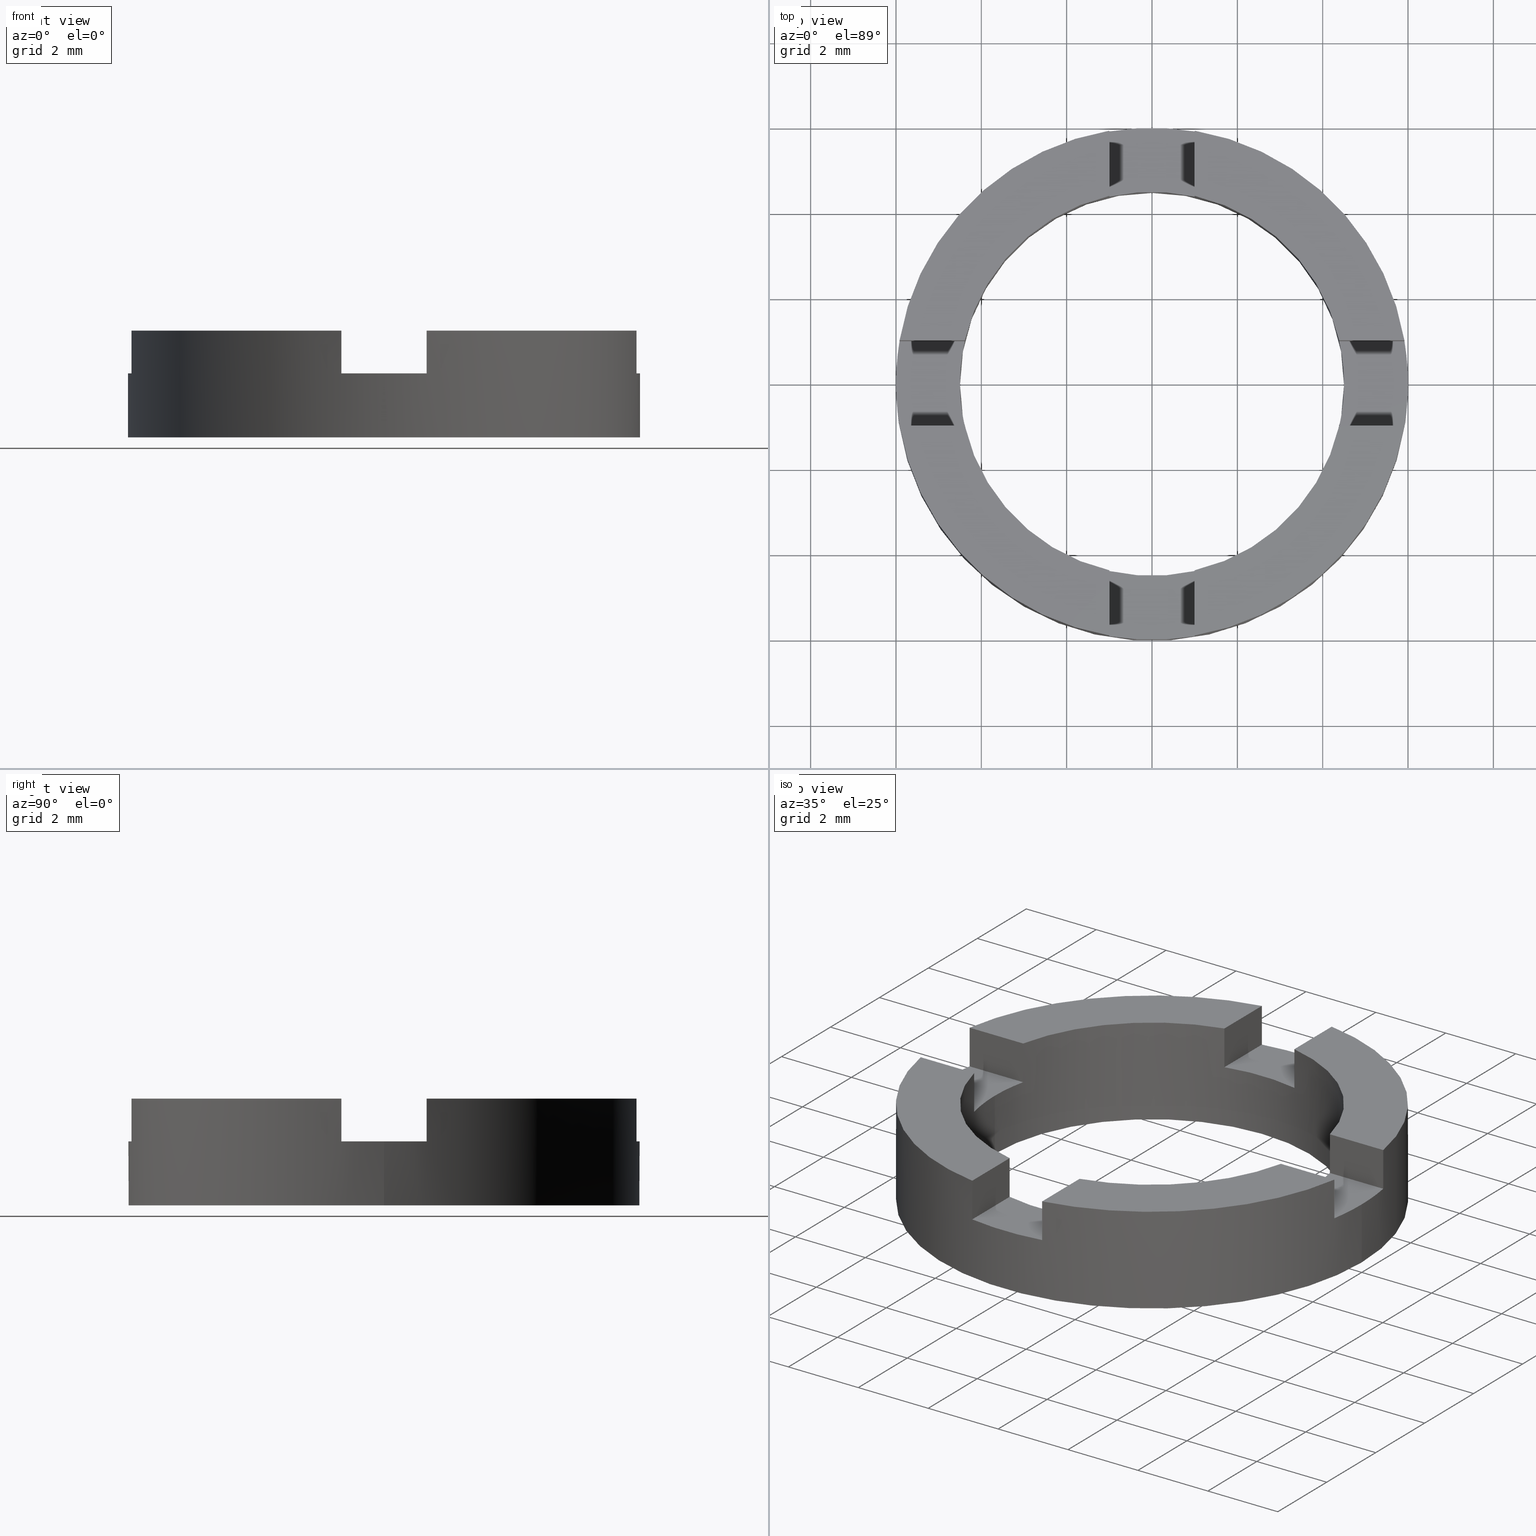
[diagram: canonical four-view strip — front | top / right | iso, engineering-drawing reading convention]
A machine part, canonical four-view strip (front | top / right | iso — engineering-drawing reading convention). The complete STEP part file that produces these views, byte-faithful:
ISO-10303-21;
HEADER;
FILE_DESCRIPTION (( 'STEP AP203' ),
    '1' );
FILE_NAME ('514029.step',
    '2024-12-26T02:30:45',
    ( 'MSI' ),
    ( '' ),
    'SwSTEP 2.0',
    'SolidWorks 2020',
    '' );
FILE_SCHEMA (( 'CONFIG_CONTROL_DESIGN' ));
ENDSEC;

DATA;
#1 = CARTESIAN_POINT ( 'NONE',  ( -4.387482193696063071, -0.9999999999999847899, 1.500000000000000000 ) ) ;
#2 = ADVANCED_FACE ( 'NONE', ( #608 ), #525, .F. ) ;
#3 = CARTESIAN_POINT ( 'NONE',  ( -0.9999999999999986677, 5.916079783099617906, 1.500000000000000000 ) ) ;
#4 = CARTESIAN_POINT ( 'NONE',  ( -0.9999999999999986677, -5.916079783099617906, 2.500000000000000000 ) ) ;
#5 = CARTESIAN_POINT ( 'NONE',  ( -4.387482193696063959, -0.9999999999999850120, 1.500000000000000000 ) ) ;
#6 = DIRECTION ( 'NONE',  ( 1.000000000000000000, 0.000000000000000000, 0.000000000000000000 ) ) ;
#7 = EDGE_CURVE ( 'NONE', #97, #337, #343, .T. ) ;
#8 = CARTESIAN_POINT ( 'NONE',  ( -4.500000000000000000, 0.000000000000000000, 0.000000000000000000 ) ) ;
#9 = EDGE_CURVE ( 'NONE', #337, #473, #599, .T. ) ;
#10 = CARTESIAN_POINT ( 'NONE',  ( -0.9999999999999986677, -4.387482193696060406, 1.500000000000000000 ) ) ;
#11 = DIRECTION ( 'NONE',  ( 1.000000000000000000, -3.722427458866898820E-15, 0.000000000000000000 ) ) ;
#12 = AXIS2_PLACEMENT_3D ( 'NONE', #81, #75, #270 ) ;
#13 = EDGE_CURVE ( 'NONE', #97, #662, #346, .T. ) ;
#14 = PLANE ( 'NONE',  #386 ) ;
#15 = CARTESIAN_POINT ( 'NONE',  ( 1.000000000000001332, 5.916079783099617018, 1.500000000000000000 ) ) ;
#16 = DIRECTION ( 'NONE',  ( -0.000000000000000000, -0.000000000000000000, 1.000000000000000000 ) ) ;
#17 = COORDINATED_UNIVERSAL_TIME_OFFSET ( 8, 0, .AHEAD. ) ;
#18 = EDGE_CURVE ( 'NONE', #434, #214, #60, .T. ) ;
#19 = CARTESIAN_POINT ( 'NONE',  ( -3.722427458866902764E-15, -1.000000000000001110, 1.500000000000000000 ) ) ;
#20 = APPROVAL_PERSON_ORGANIZATION ( #293, #428, #476 ) ;
#21 = DIRECTION ( 'NONE',  ( 1.000000000000000000, 0.000000000000000000, -0.000000000000000000 ) ) ;
#22 = SHAPE_DEFINITION_REPRESENTATION ( #762, #165 ) ;
#23 = DIRECTION ( 'NONE',  ( 1.000000000000000000, -3.758567531283081775E-15, 0.000000000000000000 ) ) ;
#24 = APPROVAL_DATE_TIME ( #290, #227 ) ;
#25 = ADVANCED_FACE ( 'NONE', ( #345 ), #14, .T. ) ;
#26 = APPROVAL_PERSON_ORGANIZATION ( #160, #509, #31 ) ;
#27 = DIRECTION ( 'NONE',  ( 1.000000000000000000, 0.000000000000000000, 0.000000000000000000 ) ) ;
#28 = DIRECTION ( 'NONE',  ( 1.000000000000000000, 0.000000000000000000, 0.000000000000000000 ) ) ;
#29 = EDGE_CURVE ( 'NONE', #720, #588, #606, .T. ) ;
#30 = CALENDAR_DATE ( 2024, 26, 12 ) ;
#31 = APPROVAL_ROLE ( '' ) ;
#32 = LOCAL_TIME ( 10, 30, 45.00000000000000000, #44 ) ;
#33 = CARTESIAN_POINT ( 'NONE',  ( 0.000000000000000000, 0.000000000000000000, 2.500000000000000000 ) ) ;
#34 = AXIS2_PLACEMENT_3D ( 'NONE', #117, #172, #537 ) ;
#35 = PLANE ( 'NONE',  #466 ) ;
#36 = EDGE_CURVE ( 'NONE', #92, #221, #607, .T. ) ;
#37 = CARTESIAN_POINT ( 'NONE',  ( -0.9999999999999986677, 4.387482193696060406, 1.500000000000000000 ) ) ;
#38 = DIRECTION ( 'NONE',  ( -0.000000000000000000, -0.000000000000000000, 1.000000000000000000 ) ) ;
#39 = DIRECTION ( 'NONE',  ( -1.000000000000000000, 0.000000000000000000, 0.000000000000000000 ) ) ;
#40 = CALENDAR_DATE ( 2024, 26, 12 ) ;
#41 = ADVANCED_FACE ( 'NONE', ( #605 ), #264, .F. ) ;
#42 = DIRECTION ( 'NONE',  ( -0.000000000000000000, -0.000000000000000000, 1.000000000000000000 ) ) ;
#43 = DATE_AND_TIME ( #285, #551 ) ;
#44 = COORDINATED_UNIVERSAL_TIME_OFFSET ( 8, 0, .AHEAD. ) ;
#45 = AXIS2_PLACEMENT_3D ( 'NONE', #533, #468, #669 ) ;
#46 = ORIENTED_EDGE ( 'NONE', *, *, #275, .T. ) ;
#47 = DIRECTION ( 'NONE',  ( -0.000000000000000000, -0.000000000000000000, -1.000000000000000000 ) ) ;
#48 = AXIS2_PLACEMENT_3D ( 'NONE', #340, #648, #703 ) ;
#49 = ADVANCED_FACE ( 'NONE', ( #328 ), #453, .T. ) ;
#50 = DIRECTION ( 'NONE',  ( 0.000000000000000000, 0.000000000000000000, 1.000000000000000000 ) ) ;
#51 = LINE ( 'NONE', #425, #580 ) ;
#52 = AXIS2_PLACEMENT_3D ( 'NONE', #182, #245, #21 ) ;
#53 = CARTESIAN_POINT ( 'NONE',  ( -3.722427458866902764E-15, -1.000000000000001110, 2.500000000000000000 ) ) ;
#54 = CIRCLE ( 'NONE', #323, 6.000000000000000888 ) ;
#55 = EDGE_CURVE ( 'NONE', #720, #206, #51, .T. ) ;
#56 = CIRCLE ( 'NONE', #530, 6.000000000000000888 ) ;
#57 = VECTOR ( 'NONE', #763, 1000.000000000000000 ) ;
#58 = VECTOR ( 'NONE', #566, 1000.000000000000000 ) ;
#59 = CARTESIAN_POINT ( 'NONE',  ( -4.500000000000000000, 0.000000000000000000, 1.500000000000000000 ) ) ;
#60 = LINE ( 'NONE', #15, #325 ) ;
#61 = UNCERTAINTY_MEASURE_WITH_UNIT (LENGTH_MEASURE( 1.000000000000000082E-05 ), #250, 'distance_accuracy_value', 'NONE');
#62 = VECTOR ( 'NONE', #84, 1000.000000000000000 ) ;
#63 = CIRCLE ( 'NONE', #45, 4.500000000000000000 ) ;
#64 = CC_DESIGN_DATE_AND_TIME_ASSIGNMENT ( #298, #173, ( #113 ) ) ;
#65 = CIRCLE ( 'NONE', #684, 4.500000000000000000 ) ;
#66 = CARTESIAN_POINT ( 'NONE',  ( -3.722427458866902764E-15, -1.000000000000001110, 1.500000000000000000 ) ) ;
#67 = EDGE_CURVE ( 'NONE', #492, #757, #54, .T. ) ;
#68 = CIRCLE ( 'NONE', #445, 6.000000000000000888 ) ;
#69 = CARTESIAN_POINT ( 'NONE',  ( -4.387482193696056854, 1.000000000000015321, 1.500000000000000000 ) ) ;
#70 = ORIENTED_EDGE ( 'NONE', *, *, #749, .T. ) ;
#71 = LINE ( 'NONE', #69, #604 ) ;
#72 = EDGE_LOOP ( 'NONE', ( #635, #735 ) ) ;
#73 = LINE ( 'NONE', #610, #595 ) ;
#74 = DIRECTION ( 'NONE',  ( -0.000000000000000000, 0.000000000000000000, 1.000000000000000000 ) ) ;
#75 = DIRECTION ( 'NONE',  ( -0.000000000000000000, -0.000000000000000000, -1.000000000000000000 ) ) ;
#76 = LINE ( 'NONE', #271, #603 ) ;
#77 = VECTOR ( 'NONE', #449, 1000.000000000000000 ) ;
#78 = VECTOR ( 'NONE', #710, 1000.000000000000000 ) ;
#79 = AXIS2_PLACEMENT_3D ( 'NONE', #516, #709, #23 ) ;
#80 = VECTOR ( 'NONE', #186, 1000.000000000000000 ) ;
#81 = CARTESIAN_POINT ( 'NONE',  ( 0.000000000000000000, 0.000000000000000000, 2.500000000000000000 ) ) ;
#82 = VECTOR ( 'NONE', #272, 1000.000000000000000 ) ;
#83 = PLANE ( 'NONE',  #243 ) ;
#84 = DIRECTION ( 'NONE',  ( 0.000000000000000000, 1.000000000000000000, -0.000000000000000000 ) ) ;
#85 = LINE ( 'NONE', #106, #82 ) ;
#86 = VECTOR ( 'NONE', #312, 1000.000000000000000 ) ;
#87 = VERTEX_POINT ( 'NONE', #722 ) ;
#88 = FACE_OUTER_BOUND ( 'NONE', #727, .T. ) ;
#89 = ORIENTED_EDGE ( 'NONE', *, *, #436, .F. ) ;
#90 = DIRECTION ( 'NONE',  ( 1.000000000000000000, -3.722427458866898820E-15, 0.000000000000000000 ) ) ;
#91 = LINE ( 'NONE', #499, #363 ) ;
#92 = VERTEX_POINT ( 'NONE', #37 ) ;
#93 = CARTESIAN_POINT ( 'NONE',  ( -0.9999999999999986677, 0.000000000000000000, 1.500000000000000000 ) ) ;
#94 = FACE_OUTER_BOUND ( 'NONE', #658, .T. ) ;
#95 = ORIENTED_EDGE ( 'NONE', *, *, #371, .F. ) ;
#96 = FACE_OUTER_BOUND ( 'NONE', #475, .T. ) ;
#97 = VERTEX_POINT ( 'NONE', #342 ) ;
#98 = CIRCLE ( 'NONE', #568, 6.000000000000000888 ) ;
#99 = ORIENTED_EDGE ( 'NONE', *, *, #745, .F. ) ;
#100 = CYLINDRICAL_SURFACE ( 'NONE', #12, 4.500000000000000000 ) ;
#101 = ORIENTED_EDGE ( 'NONE', *, *, #187, .T. ) ;
#102 = CARTESIAN_POINT ( 'NONE',  ( -3.722427458866902764E-15, -1.000000000000001110, 2.500000000000000000 ) ) ;
#103 = ORIENTED_EDGE ( 'NONE', *, *, #371, .T. ) ;
#104 = CIRCLE ( 'NONE', #718, 4.500000000000000000 ) ;
#105 = ORIENTED_EDGE ( 'NONE', *, *, #164, .F. ) ;
#106 = CARTESIAN_POINT ( 'NONE',  ( 1.000000000000001332, 4.387482193696059518, 1.500000000000000000 ) ) ;
#107 = FACE_OUTER_BOUND ( 'NONE', #134, .T. ) ;
#108 = ORIENTED_EDGE ( 'NONE', *, *, #544, .F. ) ;
#109 = VECTOR ( 'NONE', #779, 1000.000000000000000 ) ;
#110 = ORIENTED_EDGE ( 'NONE', *, *, #691, .F. ) ;
#111 = VECTOR ( 'NONE', #441, 1000.000000000000000 ) ;
#112 = ORIENTED_EDGE ( 'NONE', *, *, #179, .F. ) ;
#113 = SECURITY_CLASSIFICATION ( '', '', #459 ) ;
#114 = DIRECTION ( 'NONE',  ( 0.000000000000000000, 0.000000000000000000, -1.000000000000000000 ) ) ;
#115 = LINE ( 'NONE', #767, #133 ) ;
#116 = ORIENTED_EDGE ( 'NONE', *, *, #447, .T. ) ;
#117 = CARTESIAN_POINT ( 'NONE',  ( 0.000000000000000000, 0.000000000000000000, 1.500000000000000000 ) ) ;
#118 = DIRECTION ( 'NONE',  ( -0.000000000000000000, 0.000000000000000000, 1.000000000000000000 ) ) ;
#119 = VECTOR ( 'NONE', #311, 1000.000000000000000 ) ;
#120 = ORIENTED_EDGE ( 'NONE', *, *, #782, .T. ) ;
#121 = FACE_OUTER_BOUND ( 'NONE', #461, .T. ) ;
#122 = EDGE_LOOP ( 'NONE', ( #127, #359, #231, #145, #131, #101 ) ) ;
#123 = FACE_OUTER_BOUND ( 'NONE', #402, .T. ) ;
#124 = ORIENTED_EDGE ( 'NONE', *, *, #260, .F. ) ;
#125 = CARTESIAN_POINT ( 'NONE',  ( 1.000000000000001332, -4.387482193696059518, 2.500000000000000000 ) ) ;
#126 = CIRCLE ( 'NONE', #292, 4.500000000000000000 ) ;
#127 = ORIENTED_EDGE ( 'NONE', *, *, #470, .F. ) ;
#128 = VECTOR ( 'NONE', #474, 1000.000000000000000 ) ;
#129 = ORIENTED_EDGE ( 'NONE', *, *, #267, .F. ) ;
#130 = VECTOR ( 'NONE', #406, 1000.000000000000000 ) ;
#131 = ORIENTED_EDGE ( 'NONE', *, *, #175, .T. ) ;
#132 = AXIS2_PLACEMENT_3D ( 'NONE', #753, #444, #282 ) ;
#133 = VECTOR ( 'NONE', #16, 1000.000000000000000 ) ;
#134 = EDGE_LOOP ( 'NONE', ( #646, #327, #656, #413 ) ) ;
#135 = CARTESIAN_POINT ( 'NONE',  ( 6.000000000000000888, 7.347880794884120722E-16, 1.500000000000000000 ) ) ;
#136 = EDGE_CURVE ( 'NONE', #92, #197, #341, .T. ) ;
#137 = LINE ( 'NONE', #176, #374 ) ;
#138 = ORIENTED_EDGE ( 'NONE', *, *, #247, .T. ) ;
#139 = DIRECTION ( 'NONE',  ( 0.000000000000000000, 0.000000000000000000, 1.000000000000000000 ) ) ;
#140 = LINE ( 'NONE', #249, #401 ) ;
#141 = ORIENTED_EDGE ( 'NONE', *, *, #265, .T. ) ;
#142 = VERTEX_POINT ( 'NONE', #241 ) ;
#143 = PRODUCT ( '514029', '514029', '', ( #686 ) ) ;
#144 = LINE ( 'NONE', #232, #355 ) ;
#145 = ORIENTED_EDGE ( 'NONE', *, *, #253, .T. ) ;
#146 = DIRECTION ( 'NONE',  ( 0.000000000000000000, 0.000000000000000000, 1.000000000000000000 ) ) ;
#147 = ORIENTED_EDGE ( 'NONE', *, *, #503, .F. ) ;
#148 = ORIENTED_EDGE ( 'NONE', *, *, #538, .T. ) ;
#149 = PLANE ( 'NONE',  #256 ) ;
#150 = AXIS2_PLACEMENT_3D ( 'NONE', #191, #724, #188 ) ;
#151 = VECTOR ( 'NONE', #38, 1000.000000000000000 ) ;
#152 = VERTEX_POINT ( 'NONE', #541 ) ;
#153 = AXIS2_PLACEMENT_3D ( 'NONE', #550, #513, #626 ) ;
#154 = VECTOR ( 'NONE', #540, 1000.000000000000000 ) ;
#155 = EDGE_CURVE ( 'NONE', #221, #361, #85, .T. ) ;
#156 = CIRCLE ( 'NONE', #150, 6.000000000000000888 ) ;
#157 = ORGANIZATION ( 'δָ��', 'δָ��', '' ) ;
#158 = CARTESIAN_POINT ( 'NONE',  ( -6.000000000000000888, 0.000000000000000000, 0.000000000000000000 ) ) ;
#159 = DIRECTION ( 'NONE',  ( -3.722427458866898820E-15, -1.000000000000000000, 0.000000000000000000 ) ) ;
#160 = PERSON_AND_ORGANIZATION ( #505, #157 ) ;
#161 = LINE ( 'NONE', #688, #154 ) ;
#162 = CC_DESIGN_PERSON_AND_ORGANIZATION_ASSIGNMENT ( #552, #774, ( #514 ) ) ;
#163 = CARTESIAN_POINT ( 'NONE',  ( 4.500000000000000000, 5.510910596163088569E-16, 1.500000000000000000 ) ) ;
#164 = EDGE_CURVE ( 'NONE', #412, #87, #63, .T. ) ;
#165 = ADVANCED_BREP_SHAPE_REPRESENTATION ( '514029', ( #593, #178 ), #535 ) ;
#166 = DIRECTION ( 'NONE',  ( 1.000000000000000000, 0.000000000000000000, 0.000000000000000000 ) ) ;
#167 = DIRECTION ( 'NONE',  ( 1.000000000000000000, 0.000000000000000000, 0.000000000000000000 ) ) ;
#168 = DIRECTION ( 'NONE',  ( 0.000000000000000000, 0.000000000000000000, -1.000000000000000000 ) ) ;
#169 = CARTESIAN_POINT ( 'NONE',  ( 0.000000000000000000, 0.000000000000000000, 1.500000000000000000 ) ) ;
#170 = DIRECTION ( 'NONE',  ( 1.000000000000000000, 0.000000000000000000, 0.000000000000000000 ) ) ;
#171 = PLANE ( 'NONE',  #184 ) ;
#172 = DIRECTION ( 'NONE',  ( -0.000000000000000000, 0.000000000000000000, 1.000000000000000000 ) ) ;
#173 = DATE_TIME_ROLE ( 'classification_date' ) ;
#174 = AXIS2_PLACEMENT_3D ( 'NONE', #696, #218, #518 ) ;
#175 = EDGE_CURVE ( 'NONE', #726, #743, #602, .T. ) ;
#176 = CARTESIAN_POINT ( 'NONE',  ( 5.916079783099613465, -1.000000000000023315, 1.500000000000000000 ) ) ;
#177 = EDGE_LOOP ( 'NONE', ( #392, #373, #377, #496 ) ) ;
#178 = AXIS2_PLACEMENT_3D ( 'NONE', #286, #357, #431 ) ;
#179 = EDGE_CURVE ( 'NONE', #234, #438, #329, .T. ) ;
#180 = ORIENTED_EDGE ( 'NONE', *, *, #493, .F. ) ;
#181 = DESIGN_CONTEXT ( 'detailed design', #335, 'design' ) ;
#182 = CARTESIAN_POINT ( 'NONE',  ( 0.000000000000000000, 0.000000000000000000, 2.500000000000000000 ) ) ;
#183 = PERSON_AND_ORGANIZATION_ROLE ( 'creator' ) ;
#184 = AXIS2_PLACEMENT_3D ( 'NONE', #185, #777, #324 ) ;
#185 = CARTESIAN_POINT ( 'NONE',  ( 0.000000000000000000, 0.000000000000000000, 0.000000000000000000 ) ) ;
#186 = DIRECTION ( 'NONE',  ( 0.000000000000000000, 1.000000000000000000, -0.000000000000000000 ) ) ;
#187 = EDGE_CURVE ( 'NONE', #743, #723, #56, .T. ) ;
#188 = DIRECTION ( 'NONE',  ( 1.000000000000000000, 0.000000000000000000, 0.000000000000000000 ) ) ;
#189 = DIRECTION ( 'NONE',  ( -0.000000000000000000, -0.000000000000000000, -1.000000000000000000 ) ) ;
#190 = CARTESIAN_POINT ( 'NONE',  ( 0.000000000000000000, 0.000000000000000000, 1.500000000000000000 ) ) ;
#191 = CARTESIAN_POINT ( 'NONE',  ( 0.000000000000000000, 0.000000000000000000, 2.500000000000000000 ) ) ;
#192 = CC_DESIGN_SECURITY_CLASSIFICATION ( #113, ( #514 ) ) ;
#193 = DIRECTION ( 'NONE',  ( 1.000000000000000000, 0.000000000000000000, 0.000000000000000000 ) ) ;
#194 = CARTESIAN_POINT ( 'NONE',  ( 0.000000000000000000, 0.000000000000000000, 1.500000000000000000 ) ) ;
#195 = ORIENTED_EDGE ( 'NONE', *, *, #9, .T. ) ;
#196 = ORIENTED_EDGE ( 'NONE', *, *, #782, .F. ) ;
#197 = VERTEX_POINT ( 'NONE', #3 ) ;
#198 = EDGE_LOOP ( 'NONE', ( #103, #220 ) ) ;
#199 = EDGE_LOOP ( 'NONE', ( #754, #338, #439, #660 ) ) ;
#200 = CARTESIAN_POINT ( 'NONE',  ( 0.000000000000000000, 0.000000000000000000, 2.500000000000000000 ) ) ;
#201 = DIRECTION ( 'NONE',  ( 0.000000000000000000, 0.000000000000000000, -1.000000000000000000 ) ) ;
#202 = ORIENTED_EDGE ( 'NONE', *, *, #304, .F. ) ;
#203 = AXIS2_PLACEMENT_3D ( 'NONE', #422, #268, #564 ) ;
#204 = VERTEX_POINT ( 'NONE', #501 ) ;
#205 = EDGE_CURVE ( 'NONE', #206, #653, #579, .T. ) ;
#206 = VERTEX_POINT ( 'NONE', #252 ) ;
#207 = ORIENTED_EDGE ( 'NONE', *, *, #304, .T. ) ;
#208 = CARTESIAN_POINT ( 'NONE',  ( 1.000000000000001332, 5.916079783099617018, 1.500000000000000000 ) ) ;
#209 = EDGE_LOOP ( 'NONE', ( #741, #738, #364, #138 ) ) ;
#210 = CARTESIAN_POINT ( 'NONE',  ( 1.000000000000001332, 4.387482193696059518, 1.500000000000000000 ) ) ;
#211 = ORIENTED_EDGE ( 'NONE', *, *, #702, .F. ) ;
#212 = EDGE_LOOP ( 'NONE', ( #679, #196, #736, #665 ) ) ;
#213 = AXIS2_PLACEMENT_3D ( 'NONE', #269, #321, #170 ) ;
#214 = VERTEX_POINT ( 'NONE', #366 ) ;
#215 = CARTESIAN_POINT ( 'NONE',  ( 0.000000000000000000, 0.000000000000000000, 2.500000000000000000 ) ) ;
#216 = VERTEX_POINT ( 'NONE', #600 ) ;
#217 = AXIS2_PLACEMENT_3D ( 'NONE', #570, #663, #707 ) ;
#218 = DIRECTION ( 'NONE',  ( -0.000000000000000000, 0.000000000000000000, 1.000000000000000000 ) ) ;
#219 = ORIENTED_EDGE ( 'NONE', *, *, #778, .T. ) ;
#220 = ORIENTED_EDGE ( 'NONE', *, *, #490, .T. ) ;
#221 = VERTEX_POINT ( 'NONE', #210 ) ;
#222 = DIRECTION ( 'NONE',  ( 1.000000000000000000, -3.758567531283081775E-15, 0.000000000000000000 ) ) ;
#223 = ORIENTED_EDGE ( 'NONE', *, *, #503, .T. ) ;
#224 = CARTESIAN_POINT ( 'NONE',  ( 4.500000000000000000, 5.510910596163088569E-16, 2.500000000000000000 ) ) ;
#225 = ORIENTED_EDGE ( 'NONE', *, *, #294, .F. ) ;
#226 = ORIENTED_EDGE ( 'NONE', *, *, #261, .F. ) ;
#227 = APPROVAL ( #575, 'δָ��' ) ;
#228 = ORIENTED_EDGE ( 'NONE', *, *, #758, .T. ) ;
#229 = CARTESIAN_POINT ( 'NONE',  ( -3.722427458866902764E-15, -1.000000000000001110, 1.500000000000000000 ) ) ;
#230 = CARTESIAN_POINT ( 'NONE',  ( -0.9999999999999986677, 0.000000000000000000, 1.500000000000000000 ) ) ;
#231 = ORIENTED_EDGE ( 'NONE', *, *, #164, .T. ) ;
#232 = CARTESIAN_POINT ( 'NONE',  ( 5.916079783099621459, 0.9999999999999765743, 1.500000000000000000 ) ) ;
#233 = CARTESIAN_POINT ( 'NONE',  ( -0.9999999999999986677, 0.000000000000000000, 2.500000000000000000 ) ) ;
#234 = VERTEX_POINT ( 'NONE', #10 ) ;
#235 = DIRECTION ( 'NONE',  ( 0.000000000000000000, 1.000000000000000000, -0.000000000000000000 ) ) ;
#236 = ORIENTED_EDGE ( 'NONE', *, *, #571, .F. ) ;
#237 = ORIENTED_EDGE ( 'NONE', *, *, #13, .F. ) ;
#238 = ORIENTED_EDGE ( 'NONE', *, *, #711, .F. ) ;
#239 = DIRECTION ( 'NONE',  ( 1.000000000000000000, -3.722427458866898820E-15, 0.000000000000000000 ) ) ;
#240 = ORIENTED_EDGE ( 'NONE', *, *, #470, .T. ) ;
#241 = CARTESIAN_POINT ( 'NONE',  ( -4.387482193696063071, -0.9999999999999847899, 2.500000000000000000 ) ) ;
#242 = CC_DESIGN_APPROVAL ( #428, ( #514 ) ) ;
#243 = AXIS2_PLACEMENT_3D ( 'NONE', #93, #522, #114 ) ;
#244 = CARTESIAN_POINT ( 'NONE',  ( 1.000000000000001332, -5.916079783099617018, 1.500000000000000000 ) ) ;
#245 = DIRECTION ( 'NONE',  ( 0.000000000000000000, 0.000000000000000000, 1.000000000000000000 ) ) ;
#246 = APPROVAL_STATUS ( 'not_yet_approved' ) ;
#247 = EDGE_CURVE ( 'NONE', #434, #197, #319, .T. ) ;
#248 = CARTESIAN_POINT ( 'NONE',  ( 1.000000000000001332, 0.000000000000000000, 1.500000000000000000 ) ) ;
#249 = CARTESIAN_POINT ( 'NONE',  ( 6.000000000000000888, 7.347880794884120722E-16, 2.500000000000000000 ) ) ;
#250 =( LENGTH_UNIT ( ) NAMED_UNIT ( * ) SI_UNIT ( .MILLI., .METRE. ) );
#251 = CARTESIAN_POINT ( 'NONE',  ( 0.000000000000000000, 0.000000000000000000, 0.000000000000000000 ) ) ;
#252 = CARTESIAN_POINT ( 'NONE',  ( 1.000000000000001332, -4.387482193696059518, 1.500000000000000000 ) ) ;
#253 = EDGE_CURVE ( 'NONE', #87, #726, #331, .T. ) ;
#254 = DIRECTION ( 'NONE',  ( 1.000000000000000000, 0.000000000000000000, -0.000000000000000000 ) ) ;
#255 = CARTESIAN_POINT ( 'NONE',  ( 0.000000000000000000, 0.000000000000000000, 1.500000000000000000 ) ) ;
#256 = AXIS2_PLACEMENT_3D ( 'NONE', #194, #118, #166 ) ;
#257 = DIRECTION ( 'NONE',  ( 0.000000000000000000, 0.000000000000000000, 1.000000000000000000 ) ) ;
#258 = DIRECTION ( 'NONE',  ( 0.000000000000000000, -0.000000000000000000, -1.000000000000000000 ) ) ;
#259 = CARTESIAN_POINT ( 'NONE',  ( 0.000000000000000000, 0.000000000000000000, 1.500000000000000000 ) ) ;
#260 = EDGE_CURVE ( 'NONE', #653, #481, #582, .T. ) ;
#261 = EDGE_CURVE ( 'NONE', #615, #674, #71, .T. ) ;
#262 = CARTESIAN_POINT ( 'NONE',  ( -0.9999999999999986677, 0.000000000000000000, 2.500000000000000000 ) ) ;
#263 = CC_DESIGN_PERSON_AND_ORGANIZATION_ASSIGNMENT ( #572, #183, ( #542 ) ) ;
#264 = PLANE ( 'NONE',  #217 ) ;
#265 = EDGE_CURVE ( 'NONE', #757, #97, #350, .T. ) ;
#266 = CARTESIAN_POINT ( 'NONE',  ( 0.000000000000000000, 0.000000000000000000, 1.500000000000000000 ) ) ;
#267 = EDGE_CURVE ( 'NONE', #412, #216, #586, .T. ) ;
#268 = DIRECTION ( 'NONE',  ( 0.000000000000000000, -0.000000000000000000, -1.000000000000000000 ) ) ;
#269 = CARTESIAN_POINT ( 'NONE',  ( 0.000000000000000000, 0.000000000000000000, 1.500000000000000000 ) ) ;
#270 = DIRECTION ( 'NONE',  ( -1.000000000000000000, 0.000000000000000000, 0.000000000000000000 ) ) ;
#271 = CARTESIAN_POINT ( 'NONE',  ( 3.758567531283077831E-15, 0.9999999999999988898, 2.500000000000000000 ) ) ;
#272 = DIRECTION ( 'NONE',  ( -0.000000000000000000, -0.000000000000000000, 1.000000000000000000 ) ) ;
#273 = PERSON_AND_ORGANIZATION_ROLE ( 'classification_officer' ) ;
#274 = AXIS2_PLACEMENT_3D ( 'NONE', #419, #455, #561 ) ;
#275 = EDGE_CURVE ( 'NONE', #757, #356, #609, .T. ) ;
#276 = ADVANCED_FACE ( 'NONE', ( #322 ), #699, .T. ) ;
#277 = PLANE ( 'NONE',  #450 ) ;
#278 = PLANE ( 'NONE',  #48 ) ;
#279 = ADVANCED_FACE ( 'NONE', ( #611 ), #332, .T. ) ;
#280 = CARTESIAN_POINT ( 'NONE',  ( 1.000000000000001332, -5.916079783099617018, 2.500000000000000000 ) ) ;
#281 = PERSON_AND_ORGANIZATION_ROLE ( 'creator' ) ;
#282 = DIRECTION ( 'NONE',  ( -1.000000000000000000, 0.000000000000000000, 0.000000000000000000 ) ) ;
#283 = CALENDAR_DATE ( 2024, 26, 12 ) ;
#284 = DIRECTION ( 'NONE',  ( -0.000000000000000000, -0.000000000000000000, -1.000000000000000000 ) ) ;
#285 = CALENDAR_DATE ( 2024, 26, 12 ) ;
#286 = CARTESIAN_POINT ( 'NONE',  ( 0.000000000000000000, 0.000000000000000000, 0.000000000000000000 ) ) ;
#287 = EDGE_CURVE ( 'NONE', #221, #434, #333, .T. ) ;
#288 = CALENDAR_DATE ( 2024, 26, 12 ) ;
#289 = CARTESIAN_POINT ( 'NONE',  ( 5.916079783099621459, 0.9999999999999765743, 1.500000000000000000 ) ) ;
#290 = DATE_AND_TIME ( #283, #291 ) ;
#291 = LOCAL_TIME ( 10, 30, 45.00000000000000000, #567 ) ;
#292 = AXIS2_PLACEMENT_3D ( 'NONE', #685, #397, #446 ) ;
#293 = PERSON_AND_ORGANIZATION ( #505, #157 ) ;
#294 = EDGE_CURVE ( 'NONE', #457, #438, #353, .T. ) ;
#295 = DIRECTION ( 'NONE',  ( 0.000000000000000000, -0.000000000000000000, -1.000000000000000000 ) ) ;
#296 = EDGE_CURVE ( 'NONE', #370, #486, #76, .T. ) ;
#297 = APPROVAL_DATE_TIME ( #559, #428 ) ;
#298 = DATE_AND_TIME ( #30, #300 ) ;
#299 = DIRECTION ( 'NONE',  ( -1.000000000000000000, 0.000000000000000000, 0.000000000000000000 ) ) ;
#300 = LOCAL_TIME ( 10, 30, 45.00000000000000000, #17 ) ;
#301 = DIRECTION ( 'NONE',  ( -0.000000000000000000, -0.000000000000000000, -1.000000000000000000 ) ) ;
#302 = CARTESIAN_POINT ( 'NONE',  ( 5.916079783099613465, -1.000000000000023315, 2.500000000000000000 ) ) ;
#303 = AXIS2_PLACEMENT_3D ( 'NONE', #307, #548, #515 ) ;
#304 = EDGE_CURVE ( 'NONE', #92, #380, #614, .T. ) ;
#305 = PERSON_AND_ORGANIZATION ( #505, #157 ) ;
#306 = APPROVAL_DATE_TIME ( #308, #509 ) ;
#307 = CARTESIAN_POINT ( 'NONE',  ( 0.000000000000000000, 0.000000000000000000, 2.500000000000000000 ) ) ;
#308 = DATE_AND_TIME ( #40, #569 ) ;
#309 = DIRECTION ( 'NONE',  ( -0.000000000000000000, 0.000000000000000000, 1.000000000000000000 ) ) ;
#310 = COORDINATED_UNIVERSAL_TIME_OFFSET ( 8, 0, .AHEAD. ) ;
#311 = DIRECTION ( 'NONE',  ( 0.000000000000000000, 1.000000000000000000, -0.000000000000000000 ) ) ;
#312 = DIRECTION ( 'NONE',  ( -0.000000000000000000, -0.000000000000000000, -1.000000000000000000 ) ) ;
#313 = AXIS2_PLACEMENT_3D ( 'NONE', #230, #315, #168 ) ;
#314 = EDGE_CURVE ( 'NONE', #588, #653, #73, .T. ) ;
#315 = DIRECTION ( 'NONE',  ( 1.000000000000000000, 0.000000000000000000, 0.000000000000000000 ) ) ;
#316 = CYLINDRICAL_SURFACE ( 'NONE', #770, 6.000000000000000888 ) ;
#317 = DIRECTION ( 'NONE',  ( -0.000000000000000000, 0.000000000000000000, 1.000000000000000000 ) ) ;
#318 = EDGE_LOOP ( 'NONE', ( #478, #382, #751, #116 ) ) ;
#319 = CIRCLE ( 'NONE', #519, 6.000000000000000888 ) ;
#320 = CARTESIAN_POINT ( 'NONE',  ( 0.000000000000000000, 0.000000000000000000, 1.500000000000000000 ) ) ;
#321 = DIRECTION ( 'NONE',  ( -0.000000000000000000, 0.000000000000000000, 1.000000000000000000 ) ) ;
#322 = FACE_OUTER_BOUND ( 'NONE', #641, .T. ) ;
#323 = AXIS2_PLACEMENT_3D ( 'NONE', #529, #583, #682 ) ;
#324 = DIRECTION ( 'NONE',  ( 1.000000000000000000, 0.000000000000000000, -0.000000000000000000 ) ) ;
#325 = VECTOR ( 'NONE', #557, 1000.000000000000000 ) ;
#326 = DIRECTION ( 'NONE',  ( 1.000000000000000000, -3.758567531283081775E-15, 0.000000000000000000 ) ) ;
#327 = ORIENTED_EDGE ( 'NONE', *, *, #18, .F. ) ;
#328 = FACE_OUTER_BOUND ( 'NONE', #318, .T. ) ;
#329 = LINE ( 'NONE', #545, #347 ) ;
#330 = DIRECTION ( 'NONE',  ( 1.000000000000000000, -3.758567531283081775E-15, 0.000000000000000000 ) ) ;
#331 = LINE ( 'NONE', #448, #351 ) ;
#332 = PLANE ( 'NONE',  #547 ) ;
#333 = LINE ( 'NONE', #705, #62 ) ;
#334 = CARTESIAN_POINT ( 'NONE',  ( -0.9999999999999986677, 4.387482193696060406, 2.500000000000000000 ) ) ;
#335 = APPLICATION_CONTEXT ( 'configuration controlled 3d designs of mechanical parts and assemblies' ) ;
#336 = ORIENTED_EDGE ( 'NONE', *, *, #265, .F. ) ;
#337 = VERTEX_POINT ( 'NONE', #5 ) ;
#338 = ORIENTED_EDGE ( 'NONE', *, *, #511, .T. ) ;
#339 = FACE_OUTER_BOUND ( 'NONE', #630, .T. ) ;
#340 = CARTESIAN_POINT ( 'NONE',  ( 0.000000000000000000, 0.000000000000000000, 2.500000000000000000 ) ) ;
#341 = LINE ( 'NONE', #494, #80 ) ;
#342 = CARTESIAN_POINT ( 'NONE',  ( -5.916079783099620570, -0.9999999999999790168, 1.500000000000000000 ) ) ;
#343 = LINE ( 'NONE', #229, #344 ) ;
#344 = VECTOR ( 'NONE', #526, 1000.000000000000000 ) ;
#345 = FACE_OUTER_BOUND ( 'NONE', #209, .T. ) ;
#346 = LINE ( 'NONE', #418, #57 ) ;
#347 = VECTOR ( 'NONE', #42, 1000.000000000000000 ) ;
#348 = CARTESIAN_POINT ( 'NONE',  ( 0.000000000000000000, 0.000000000000000000, 1.500000000000000000 ) ) ;
#349 = AXIS2_PLACEMENT_3D ( 'NONE', #647, #463, #701 ) ;
#350 = CIRCLE ( 'NONE', #174, 6.000000000000000888 ) ;
#351 = VECTOR ( 'NONE', #704, 1000.000000000000000 ) ;
#352 = DIRECTION ( 'NONE',  ( 0.000000000000000000, 1.000000000000000000, -0.000000000000000000 ) ) ;
#353 = LINE ( 'NONE', #233, #597 ) ;
#354 = EDGE_LOOP ( 'NONE', ( #728, #147, #148, #672 ) ) ;
#355 = VECTOR ( 'NONE', #491, 1000.000000000000000 ) ;
#356 = VERTEX_POINT ( 'NONE', #158 ) ;
#357 = DIRECTION ( 'NONE',  ( 0.000000000000000000, 0.000000000000000000, 1.000000000000000000 ) ) ;
#358 = LINE ( 'NONE', #262, #119 ) ;
#359 = ORIENTED_EDGE ( 'NONE', *, *, #554, .T. ) ;
#360 = VECTOR ( 'NONE', #239, 1000.000000000000000 ) ;
#361 = VERTEX_POINT ( 'NONE', #440 ) ;
#362 = CARTESIAN_POINT ( 'NONE',  ( 5.916079783099613465, -1.000000000000023315, 1.500000000000000000 ) ) ;
#363 = VECTOR ( 'NONE', #543, 1000.000000000000000 ) ;
#364 = ORIENTED_EDGE ( 'NONE', *, *, #287, .T. ) ;
#365 = ADVANCED_FACE ( 'NONE', ( #88 ), #316, .T. ) ;
#366 = CARTESIAN_POINT ( 'NONE',  ( 1.000000000000001332, 5.916079783099617018, 2.500000000000000000 ) ) ;
#367 = FACE_OUTER_BOUND ( 'NONE', #122, .T. ) ;
#368 = ORIENTED_EDGE ( 'NONE', *, *, #451, .T. ) ;
#369 = VECTOR ( 'NONE', #558, 1000.000000000000000 ) ;
#370 = VERTEX_POINT ( 'NONE', #385 ) ;
#371 = EDGE_CURVE ( 'NONE', #469, #216, #65, .T. ) ;
#372 = VECTOR ( 'NONE', #613, 1000.000000000000000 ) ;
#373 = ORIENTED_EDGE ( 'NONE', *, *, #616, .F. ) ;
#374 = VECTOR ( 'NONE', #420, 1000.000000000000000 ) ;
#375 = ORIENTED_EDGE ( 'NONE', *, *, #388, .T. ) ;
#376 = FACE_OUTER_BOUND ( 'NONE', #354, .T. ) ;
#377 = ORIENTED_EDGE ( 'NONE', *, *, #253, .F. ) ;
#378 = CARTESIAN_POINT ( 'NONE',  ( -5.916079783099614353, 1.000000000000021316, 1.500000000000000000 ) ) ;
#379 = FACE_OUTER_BOUND ( 'NONE', #72, .T. ) ;
#380 = VERTEX_POINT ( 'NONE', #334 ) ;
#381 = ORIENTED_EDGE ( 'NONE', *, *, #706, .T. ) ;
#382 = ORIENTED_EDGE ( 'NONE', *, *, #544, .T. ) ;
#383 = CYLINDRICAL_SURFACE ( 'NONE', #132, 6.000000000000000888 ) ;
#384 = ORIENTED_EDGE ( 'NONE', *, *, #136, .T. ) ;
#385 = CARTESIAN_POINT ( 'NONE',  ( 4.387482193696063959, 0.9999999999999824585, 2.500000000000000000 ) ) ;
#386 = AXIS2_PLACEMENT_3D ( 'NONE', #169, #74, #633 ) ;
#387 = ORIENTED_EDGE ( 'NONE', *, *, #571, .T. ) ;
#388 = EDGE_CURVE ( 'NONE', #588, #437, #68, .T. ) ;
#389 = FACE_OUTER_BOUND ( 'NONE', #212, .T. ) ;
#390 = ORIENTED_EDGE ( 'NONE', *, *, #29, .F. ) ;
#391 = LINE ( 'NONE', #414, #627 ) ;
#392 = ORIENTED_EDGE ( 'NONE', *, *, #436, .T. ) ;
#393 = LINE ( 'NONE', #424, #128 ) ;
#394 = ORIENTED_EDGE ( 'NONE', *, *, #745, .T. ) ;
#395 = CIRCLE ( 'NONE', #213, 6.000000000000000888 ) ;
#396 = ORIENTED_EDGE ( 'NONE', *, *, #578, .F. ) ;
#397 = DIRECTION ( 'NONE',  ( 0.000000000000000000, 0.000000000000000000, 1.000000000000000000 ) ) ;
#398 = ORIENTED_EDGE ( 'NONE', *, *, #636, .T. ) ;
#399 = FACE_OUTER_BOUND ( 'NONE', #587, .T. ) ;
#400 = ORIENTED_EDGE ( 'NONE', *, *, #429, .F. ) ;
#401 = VECTOR ( 'NONE', #284, 1000.000000000000000 ) ;
#402 = EDGE_LOOP ( 'NONE', ( #89, #124, #632, #375 ) ) ;
#403 = AXIS2_PLACEMENT_3D ( 'NONE', #19, #644, #90 ) ;
#404 = CIRCLE ( 'NONE', #274, 4.500000000000000000 ) ;
#405 = ORIENTED_EDGE ( 'NONE', *, *, #511, .F. ) ;
#406 = DIRECTION ( 'NONE',  ( 1.000000000000000000, -3.722427458866898820E-15, 0.000000000000000000 ) ) ;
#407 = ORIENTED_EDGE ( 'NONE', *, *, #454, .T. ) ;
#408 = CARTESIAN_POINT ( 'NONE',  ( -6.000000000000000888, 0.000000000000000000, 2.500000000000000000 ) ) ;
#409 = CIRCLE ( 'NONE', #775, 6.000000000000000888 ) ;
#410 = ORIENTED_EDGE ( 'NONE', *, *, #260, .T. ) ;
#411 = VECTOR ( 'NONE', #189, 1000.000000000000000 ) ;
#412 = VERTEX_POINT ( 'NONE', #163 ) ;
#413 = ORIENTED_EDGE ( 'NONE', *, *, #155, .T. ) ;
#414 = CARTESIAN_POINT ( 'NONE',  ( 3.758567531283077831E-15, 0.9999999999999988898, 1.500000000000000000 ) ) ;
#415 = DIRECTION ( 'NONE',  ( 1.000000000000000000, 0.000000000000000000, 0.000000000000000000 ) ) ;
#416 = FACE_OUTER_BOUND ( 'NONE', #460, .T. ) ;
#417 = PERSON_AND_ORGANIZATION ( #505, #157 ) ;
#418 = CARTESIAN_POINT ( 'NONE',  ( -5.916079783099620570, -0.9999999999999790168, 1.500000000000000000 ) ) ;
#419 = CARTESIAN_POINT ( 'NONE',  ( 0.000000000000000000, 0.000000000000000000, 1.500000000000000000 ) ) ;
#420 = DIRECTION ( 'NONE',  ( -0.000000000000000000, -0.000000000000000000, 1.000000000000000000 ) ) ;
#421 = DIRECTION ( 'NONE',  ( 1.000000000000000000, 0.000000000000000000, 0.000000000000000000 ) ) ;
#422 = CARTESIAN_POINT ( 'NONE',  ( 0.000000000000000000, 0.000000000000000000, 1.500000000000000000 ) ) ;
#423 = CC_DESIGN_PERSON_AND_ORGANIZATION_ASSIGNMENT ( #305, #273, ( #113 ) ) ;
#424 = CARTESIAN_POINT ( 'NONE',  ( -0.9999999999999986677, 5.916079783099617906, 1.500000000000000000 ) ) ;
#425 = CARTESIAN_POINT ( 'NONE',  ( 1.000000000000001332, 0.000000000000000000, 1.500000000000000000 ) ) ;
#426 = APPLICATION_PROTOCOL_DEFINITION ( 'international standard', 'config_control_design', 1994, #335 ) ;
#427 = ADVANCED_FACE ( 'NONE', ( #339 ), #383, .T. ) ;
#428 = APPROVAL ( #700, 'δָ��' ) ;
#429 = EDGE_CURVE ( 'NONE', #152, #732, #98, .T. ) ;
#430 = CARTESIAN_POINT ( 'NONE',  ( 6.000000000000000888, 7.347880794884120722E-16, 0.000000000000000000 ) ) ;
#431 = DIRECTION ( 'NONE',  ( 1.000000000000000000, 0.000000000000000000, 0.000000000000000000 ) ) ;
#432 = ADVANCED_FACE ( 'NONE', ( #367 ), #149, .T. ) ;
#433 = PRODUCT_RELATED_PRODUCT_CATEGORY ( 'detail', '', ( #143 ) ) ;
#434 = VERTEX_POINT ( 'NONE', #208 ) ;
#435 = CARTESIAN_POINT ( 'NONE',  ( 0.000000000000000000, 0.000000000000000000, 2.500000000000000000 ) ) ;
#436 = EDGE_CURVE ( 'NONE', #481, #437, #651, .T. ) ;
#437 = VERTEX_POINT ( 'NONE', #302 ) ;
#438 = VERTEX_POINT ( 'NONE', #510 ) ;
#439 = ORIENTED_EDGE ( 'NONE', *, *, #429, .T. ) ;
#440 = CARTESIAN_POINT ( 'NONE',  ( 1.000000000000001332, 4.387482193696059518, 2.500000000000000000 ) ) ;
#441 = DIRECTION ( 'NONE',  ( -0.000000000000000000, -0.000000000000000000, 1.000000000000000000 ) ) ;
#442 = ORIENTED_EDGE ( 'NONE', *, *, #155, .F. ) ;
#443 = DIRECTION ( 'NONE',  ( 0.000000000000000000, 0.000000000000000000, 1.000000000000000000 ) ) ;
#444 = DIRECTION ( 'NONE',  ( -0.000000000000000000, -0.000000000000000000, -1.000000000000000000 ) ) ;
#445 = AXIS2_PLACEMENT_3D ( 'NONE', #215, #257, #507 ) ;
#446 = DIRECTION ( 'NONE',  ( 1.000000000000000000, 0.000000000000000000, 0.000000000000000000 ) ) ;
#447 = EDGE_CURVE ( 'NONE', #206, #234, #104, .T. ) ;
#448 = CARTESIAN_POINT ( 'NONE',  ( -3.722427458866902764E-15, -1.000000000000001110, 1.500000000000000000 ) ) ;
#449 = DIRECTION ( 'NONE',  ( -0.000000000000000000, -0.000000000000000000, -1.000000000000000000 ) ) ;
#450 = AXIS2_PLACEMENT_3D ( 'NONE', #33, #677, #719 ) ;
#451 = EDGE_CURVE ( 'NONE', #356, #717, #634, .T. ) ;
#452 = ORIENTED_EDGE ( 'NONE', *, *, #36, .F. ) ;
#453 = PLANE ( 'NONE',  #34 ) ;
#454 = EDGE_CURVE ( 'NONE', #142, #438, #645, .T. ) ;
#455 = DIRECTION ( 'NONE',  ( 0.000000000000000000, -0.000000000000000000, -1.000000000000000000 ) ) ;
#456 = ORIENTED_EDGE ( 'NONE', *, *, #275, .F. ) ;
#457 = VERTEX_POINT ( 'NONE', #4 ) ;
#458 = EDGE_LOOP ( 'NONE', ( #488, #715, #141, #625, #195, #485 ) ) ;
#459 = SECURITY_CLASSIFICATION_LEVEL ( 'unclassified' ) ;
#460 = EDGE_LOOP ( 'NONE', ( #396, #219, #730, #748 ) ) ;
#461 = EDGE_LOOP ( 'NONE', ( #755, #477, #650, #643 ) ) ;
#462 = DIRECTION ( 'NONE',  ( 0.000000000000000000, -0.000000000000000000, -1.000000000000000000 ) ) ;
#463 = DIRECTION ( 'NONE',  ( 0.000000000000000000, 0.000000000000000000, 1.000000000000000000 ) ) ;
#464 = ORIENTED_EDGE ( 'NONE', *, *, #556, .T. ) ;
#465 = CARTESIAN_POINT ( 'NONE',  ( -5.916079783099620570, -0.9999999999999790168, 2.500000000000000000 ) ) ;
#466 = AXIS2_PLACEMENT_3D ( 'NONE', #708, #771, #330 ) ;
#467 = ORIENTED_EDGE ( 'NONE', *, *, #9, .F. ) ;
#468 = DIRECTION ( 'NONE',  ( 0.000000000000000000, -0.000000000000000000, -1.000000000000000000 ) ) ;
#469 = VERTEX_POINT ( 'NONE', #8 ) ;
#470 = EDGE_CURVE ( 'NONE', #204, #723, #659, .T. ) ;
#471 = ORIENTED_EDGE ( 'NONE', *, *, #205, .F. ) ;
#472 = CARTESIAN_POINT ( 'NONE',  ( 1.000000000000001332, -5.916079783099617018, 1.500000000000000000 ) ) ;
#473 = VERTEX_POINT ( 'NONE', #59 ) ;
#474 = DIRECTION ( 'NONE',  ( -0.000000000000000000, -0.000000000000000000, 1.000000000000000000 ) ) ;
#475 = EDGE_LOOP ( 'NONE', ( #105, #612, #95, #479, #467, #120, #407, #112, #628, #676, #410, #110 ) ) ;
#476 = APPROVAL_ROLE ( '' ) ;
#477 = ORIENTED_EDGE ( 'NONE', *, *, #556, .F. ) ;
#478 = ORIENTED_EDGE ( 'NONE', *, *, #706, .F. ) ;
#479 = ORIENTED_EDGE ( 'NONE', *, *, #749, .F. ) ;
#480 = CARTESIAN_POINT ( 'NONE',  ( -4.387482193696056854, 1.000000000000015321, 1.500000000000000000 ) ) ;
#481 = VERTEX_POINT ( 'NONE', #539 ) ;
#482 = ORIENTED_EDGE ( 'NONE', *, *, #554, .F. ) ;
#483 = ORIENTED_EDGE ( 'NONE', *, *, #296, .F. ) ;
#484 = EDGE_LOOP ( 'NONE', ( #504, #471, #668, #638 ) ) ;
#485 = ORIENTED_EDGE ( 'NONE', *, *, #493, .T. ) ;
#486 = VERTEX_POINT ( 'NONE', #585 ) ;
#487 = DIRECTION ( 'NONE',  ( 0.000000000000000000, 0.000000000000000000, 1.000000000000000000 ) ) ;
#488 = ORIENTED_EDGE ( 'NONE', *, *, #538, .F. ) ;
#489 = ORIENTED_EDGE ( 'NONE', *, *, #778, .F. ) ;
#490 = EDGE_CURVE ( 'NONE', #216, #469, #126, .T. ) ;
#491 = DIRECTION ( 'NONE',  ( -0.000000000000000000, -0.000000000000000000, 1.000000000000000000 ) ) ;
#492 = VERTEX_POINT ( 'NONE', #725 ) ;
#493 = EDGE_CURVE ( 'NONE', #473, #615, #619, .T. ) ;
#494 = CARTESIAN_POINT ( 'NONE',  ( -0.9999999999999986677, 0.000000000000000000, 1.500000000000000000 ) ) ;
#495 = APPLICATION_CONTEXT ( 'configuration controlled 3d designs of mechanical parts and assemblies' ) ;
#496 = ORIENTED_EDGE ( 'NONE', *, *, #691, .T. ) ;
#497 = VERTEX_POINT ( 'NONE', #760 ) ;
#498 = ORIENTED_EDGE ( 'NONE', *, *, #187, .F. ) ;
#499 = CARTESIAN_POINT ( 'NONE',  ( -0.9999999999999986677, -5.916079783099617906, 1.500000000000000000 ) ) ;
#500 = ORIENTED_EDGE ( 'NONE', *, *, #616, .T. ) ;
#501 = CARTESIAN_POINT ( 'NONE',  ( 4.387482193696063959, 0.9999999999999824585, 1.500000000000000000 ) ) ;
#502 = AXIS2_PLACEMENT_3D ( 'NONE', #546, #487, #698 ) ;
#503 = EDGE_CURVE ( 'NONE', #492, #732, #617, .T. ) ;
#504 = ORIENTED_EDGE ( 'NONE', *, *, #314, .T. ) ;
#505 = PERSON ( 'δָ��', 'δָ��', 'δָ��', ('δָ��'), ('δָ��'), ('δָ��') ) ;
#506 = ADVANCED_FACE ( 'NONE', ( #389 ), #693, .F. ) ;
#507 = DIRECTION ( 'NONE',  ( 1.000000000000000000, 0.000000000000000000, 0.000000000000000000 ) ) ;
#508 = CARTESIAN_POINT ( 'NONE',  ( 0.000000000000000000, 0.000000000000000000, 0.000000000000000000 ) ) ;
#509 = APPROVAL ( #246, 'δָ��' ) ;
#510 = CARTESIAN_POINT ( 'NONE',  ( -0.9999999999999986677, -4.387482193696060406, 2.500000000000000000 ) ) ;
#511 = EDGE_CURVE ( 'NONE', #380, #152, #358, .T. ) ;
#512 = CARTESIAN_POINT ( 'NONE',  ( 3.758567531283077831E-15, 0.9999999999999988898, 1.500000000000000000 ) ) ;
#513 = DIRECTION ( 'NONE',  ( 0.000000000000000000, 0.000000000000000000, 1.000000000000000000 ) ) ;
#514 = PRODUCT_DEFINITION_FORMATION_WITH_SPECIFIED_SOURCE ( '�κ�', '', #143, .NOT_KNOWN. ) ;
#515 = DIRECTION ( 'NONE',  ( 1.000000000000000000, 0.000000000000000000, 0.000000000000000000 ) ) ;
#516 = CARTESIAN_POINT ( 'NONE',  ( 3.758567531283077831E-15, 0.9999999999999988898, 1.500000000000000000 ) ) ;
#517 = PLANE ( 'NONE',  #313 ) ;
#518 = DIRECTION ( 'NONE',  ( 1.000000000000000000, 0.000000000000000000, 0.000000000000000000 ) ) ;
#519 = AXIS2_PLACEMENT_3D ( 'NONE', #259, #309, #167 ) ;
#520 = DIRECTION ( 'NONE',  ( 1.000000000000000000, 0.000000000000000000, 0.000000000000000000 ) ) ;
#521 = EDGE_CURVE ( 'NONE', #732, #674, #642, .T. ) ;
#522 = DIRECTION ( 'NONE',  ( 1.000000000000000000, 0.000000000000000000, 0.000000000000000000 ) ) ;
#523 = CARTESIAN_POINT ( 'NONE',  ( -0.9999999999999986677, 4.387482193696060406, 1.500000000000000000 ) ) ;
#524 = CARTESIAN_POINT ( 'NONE',  ( 0.000000000000000000, 0.000000000000000000, 1.500000000000000000 ) ) ;
#525 = PLANE ( 'NONE',  #403 ) ;
#526 = DIRECTION ( 'NONE',  ( 1.000000000000000000, -3.722427458866898820E-15, 0.000000000000000000 ) ) ;
#527 = CARTESIAN_POINT ( 'NONE',  ( -0.9999999999999986677, 0.000000000000000000, 1.500000000000000000 ) ) ;
#528 = AXIS2_PLACEMENT_3D ( 'NONE', #536, #581, #713 ) ;
#529 = CARTESIAN_POINT ( 'NONE',  ( 0.000000000000000000, 0.000000000000000000, 1.500000000000000000 ) ) ;
#530 = AXIS2_PLACEMENT_3D ( 'NONE', #190, #731, #193 ) ;
#531 = ADVANCED_FACE ( 'NONE', ( #107 ), #747, .F. ) ;
#532 = ADVANCED_FACE ( 'NONE', ( #94 ), #517, .T. ) ;
#533 = CARTESIAN_POINT ( 'NONE',  ( 0.000000000000000000, 0.000000000000000000, 1.500000000000000000 ) ) ;
#534 = PERSON_AND_ORGANIZATION_ROLE ( 'design_owner' ) ;
#535 =( GEOMETRIC_REPRESENTATION_CONTEXT ( 3 ) GLOBAL_UNCERTAINTY_ASSIGNED_CONTEXT ( ( #61 ) ) GLOBAL_UNIT_ASSIGNED_CONTEXT ( ( #250, #683, #780 ) ) REPRESENTATION_CONTEXT ( 'NONE', 'WORKASPACE' ) );
#536 = CARTESIAN_POINT ( 'NONE',  ( 0.000000000000000000, 0.000000000000000000, 2.500000000000000000 ) ) ;
#537 = DIRECTION ( 'NONE',  ( 1.000000000000000000, 0.000000000000000000, 0.000000000000000000 ) ) ;
#538 = EDGE_CURVE ( 'NONE', #492, #615, #391, .T. ) ;
#539 = CARTESIAN_POINT ( 'NONE',  ( 4.387482193696056854, -1.000000000000017319, 2.500000000000000000 ) ) ;
#540 = DIRECTION ( 'NONE',  ( 0.000000000000000000, 1.000000000000000000, -0.000000000000000000 ) ) ;
#541 = CARTESIAN_POINT ( 'NONE',  ( -0.9999999999999986677, 5.916079783099617906, 2.500000000000000000 ) ) ;
#542 = PRODUCT_DEFINITION ( 'δ֪', '', #514, #181 ) ;
#543 = DIRECTION ( 'NONE',  ( -0.000000000000000000, -0.000000000000000000, 1.000000000000000000 ) ) ;
#544 = EDGE_CURVE ( 'NONE', #497, #720, #395, .T. ) ;
#545 = CARTESIAN_POINT ( 'NONE',  ( -0.9999999999999986677, -4.387482193696060406, 1.500000000000000000 ) ) ;
#546 = CARTESIAN_POINT ( 'NONE',  ( 0.000000000000000000, 0.000000000000000000, 0.000000000000000000 ) ) ;
#547 = AXIS2_PLACEMENT_3D ( 'NONE', #266, #317, #415 ) ;
#548 = DIRECTION ( 'NONE',  ( 0.000000000000000000, 0.000000000000000000, 1.000000000000000000 ) ) ;
#549 = PERSON_AND_ORGANIZATION ( #505, #157 ) ;
#550 = CARTESIAN_POINT ( 'NONE',  ( 0.000000000000000000, 0.000000000000000000, 2.500000000000000000 ) ) ;
#551 = LOCAL_TIME ( 10, 30, 45.00000000000000000, #555 ) ;
#552 = PERSON_AND_ORGANIZATION ( #505, #157 ) ;
#553 = DIRECTION ( 'NONE',  ( 1.000000000000000000, 0.000000000000000000, 0.000000000000000000 ) ) ;
#554 = EDGE_CURVE ( 'NONE', #204, #412, #404, .T. ) ;
#555 = COORDINATED_UNIVERSAL_TIME_OFFSET ( 8, 0, .AHEAD. ) ;
#556 = EDGE_CURVE ( 'NONE', #370, #361, #657, .T. ) ;
#557 = DIRECTION ( 'NONE',  ( -0.000000000000000000, -0.000000000000000000, 1.000000000000000000 ) ) ;
#558 = DIRECTION ( 'NONE',  ( 1.000000000000000000, -3.758567531283081775E-15, 0.000000000000000000 ) ) ;
#559 = DATE_AND_TIME ( #288, #32 ) ;
#560 = PERSON_AND_ORGANIZATION ( #505, #157 ) ;
#561 = DIRECTION ( 'NONE',  ( 1.000000000000000000, -1.421085471520200372E-14, 0.000000000000000000 ) ) ;
#562 = AXIS2_PLACEMENT_3D ( 'NONE', #524, #773, #28 ) ;
#563 = APPROVAL_PERSON_ORGANIZATION ( #549, #227, #577 ) ;
#564 = DIRECTION ( 'NONE',  ( 1.000000000000000000, 0.000000000000000000, 0.000000000000000000 ) ) ;
#565 = CARTESIAN_POINT ( 'NONE',  ( -4.387482193696056854, 1.000000000000015321, 2.500000000000000000 ) ) ;
#566 = DIRECTION ( 'NONE',  ( -0.000000000000000000, -0.000000000000000000, 1.000000000000000000 ) ) ;
#567 = COORDINATED_UNIVERSAL_TIME_OFFSET ( 8, 0, .AHEAD. ) ;
#568 = AXIS2_PLACEMENT_3D ( 'NONE', #694, #50, #695 ) ;
#569 = LOCAL_TIME ( 10, 30, 45.00000000000000000, #310 ) ;
#570 = CARTESIAN_POINT ( 'NONE',  ( 1.000000000000001332, 0.000000000000000000, 1.500000000000000000 ) ) ;
#571 = EDGE_CURVE ( 'NONE', #204, #370, #115, .T. ) ;
#572 = PERSON_AND_ORGANIZATION ( #505, #157 ) ;
#573 = ADVANCED_FACE ( 'NONE', ( #661 ), #100, .F. ) ;
#574 = CARTESIAN_POINT ( 'NONE',  ( 0.000000000000000000, 0.000000000000000000, 2.500000000000000000 ) ) ;
#575 = APPROVAL_STATUS ( 'not_yet_approved' ) ;
#576 = CC_DESIGN_APPROVAL ( #509, ( #542 ) ) ;
#577 = APPROVAL_ROLE ( '' ) ;
#578 = EDGE_CURVE ( 'NONE', #662, #142, #649, .T. ) ;
#579 = LINE ( 'NONE', #592, #591 ) ;
#580 = VECTOR ( 'NONE', #235, 1000.000000000000000 ) ;
#581 = DIRECTION ( 'NONE',  ( 0.000000000000000000, 0.000000000000000000, 1.000000000000000000 ) ) ;
#582 = CIRCLE ( 'NONE', #153, 4.500000000000000000 ) ;
#583 = DIRECTION ( 'NONE',  ( -0.000000000000000000, 0.000000000000000000, 1.000000000000000000 ) ) ;
#584 = ADVANCED_FACE ( 'NONE', ( #123 ), #681, .T. ) ;
#585 = CARTESIAN_POINT ( 'NONE',  ( 5.916079783099621459, 0.9999999999999765743, 2.500000000000000000 ) ) ;
#586 = LINE ( 'NONE', #224, #86 ) ;
#587 = EDGE_LOOP ( 'NONE', ( #225, #99, #381, #601 ) ) ;
#588 = VERTEX_POINT ( 'NONE', #280 ) ;
#589 = AXIS2_PLACEMENT_3D ( 'NONE', #255, #295, #623 ) ;
#590 = CARTESIAN_POINT ( 'NONE',  ( -4.500000000000000000, 0.000000000000000000, 2.500000000000000000 ) ) ;
#591 = VECTOR ( 'NONE', #690, 1000.000000000000000 ) ;
#592 = CARTESIAN_POINT ( 'NONE',  ( 1.000000000000001332, -4.387482193696059518, 1.500000000000000000 ) ) ;
#593 = MANIFOLD_SOLID_BREP ( '�г�-����1', #752 ) ;
#594 = APPLICATION_PROTOCOL_DEFINITION ( 'international standard', 'config_control_design', 1994, #495 ) ;
#595 = VECTOR ( 'NONE', #746, 1000.000000000000000 ) ;
#596 = ADVANCED_FACE ( 'NONE', ( #629 ), #277, .T. ) ;
#597 = VECTOR ( 'NONE', #768, 1000.000000000000000 ) ;
#598 = CARTESIAN_POINT ( 'NONE',  ( -6.000000000000000888, 0.000000000000000000, 1.500000000000000000 ) ) ;
#599 = CIRCLE ( 'NONE', #203, 4.500000000000000000 ) ;
#600 = CARTESIAN_POINT ( 'NONE',  ( 4.500000000000000000, 5.510910596163088569E-16, 0.000000000000000000 ) ) ;
#601 = ORIENTED_EDGE ( 'NONE', *, *, #179, .T. ) ;
#602 = CIRCLE ( 'NONE', #562, 6.000000000000000888 ) ;
#603 = VECTOR ( 'NONE', #326, 1000.000000000000000 ) ;
#604 = VECTOR ( 'NONE', #639, 1000.000000000000000 ) ;
#605 = FACE_OUTER_BOUND ( 'NONE', #484, .T. ) ;
#606 = LINE ( 'NONE', #472, #78 ) ;
#607 = CIRCLE ( 'NONE', #776, 4.500000000000000000 ) ;
#608 = FACE_OUTER_BOUND ( 'NONE', #177, .T. ) ;
#609 = LINE ( 'NONE', #408, #77 ) ;
#610 = CARTESIAN_POINT ( 'NONE',  ( 1.000000000000001332, 0.000000000000000000, 2.500000000000000000 ) ) ;
#611 = FACE_OUTER_BOUND ( 'NONE', #458, .T. ) ;
#612 = ORIENTED_EDGE ( 'NONE', *, *, #267, .T. ) ;
#613 = DIRECTION ( 'NONE',  ( 1.000000000000000000, -3.758567531283081775E-15, 0.000000000000000000 ) ) ;
#614 = LINE ( 'NONE', #523, #58 ) ;
#615 = VERTEX_POINT ( 'NONE', #480 ) ;
#616 = EDGE_CURVE ( 'NONE', #726, #437, #137, .T. ) ;
#617 = LINE ( 'NONE', #378, #111 ) ;
#618 = ORIENTED_EDGE ( 'NONE', *, *, #490, .F. ) ;
#619 = CIRCLE ( 'NONE', #589, 4.500000000000000000 ) ;
#620 = ORIENTED_EDGE ( 'NONE', *, *, #67, .F. ) ;
#621 = VECTOR ( 'NONE', #352, 1000.000000000000000 ) ;
#622 = ORIENTED_EDGE ( 'NONE', *, *, #675, .T. ) ;
#623 = DIRECTION ( 'NONE',  ( 1.000000000000000000, 0.000000000000000000, 0.000000000000000000 ) ) ;
#624 = LINE ( 'NONE', #590, #411 ) ;
#625 = ORIENTED_EDGE ( 'NONE', *, *, #7, .T. ) ;
#626 = DIRECTION ( 'NONE',  ( 1.000000000000000000, 0.000000000000000000, 0.000000000000000000 ) ) ;
#627 = VECTOR ( 'NONE', #222, 1000.000000000000000 ) ;
#628 = ORIENTED_EDGE ( 'NONE', *, *, #447, .F. ) ;
#629 = FACE_OUTER_BOUND ( 'NONE', #199, .T. ) ;
#630 = EDGE_LOOP ( 'NONE', ( #211, #652, #500, #750, #390, #108, #394, #489, #237, #336, #46, #368 ) ) ;
#631 = AXIS2_PLACEMENT_3D ( 'NONE', #574, #666, #27 ) ;
#632 = ORIENTED_EDGE ( 'NONE', *, *, #314, .F. ) ;
#633 = DIRECTION ( 'NONE',  ( 1.000000000000000000, 0.000000000000000000, 0.000000000000000000 ) ) ;
#634 = CIRCLE ( 'NONE', #502, 6.000000000000000888 ) ;
#635 = ORIENTED_EDGE ( 'NONE', *, *, #451, .F. ) ;
#636 = EDGE_CURVE ( 'NONE', #723, #486, #144, .T. ) ;
#637 = FACE_BOUND ( 'NONE', #198, .T. ) ;
#638 = ORIENTED_EDGE ( 'NONE', *, *, #29, .T. ) ;
#639 = DIRECTION ( 'NONE',  ( -0.000000000000000000, -0.000000000000000000, 1.000000000000000000 ) ) ;
#640 = CYLINDRICAL_SURFACE ( 'NONE', #673, 4.500000000000000000 ) ;
#641 = EDGE_LOOP ( 'NONE', ( #483, #236, #240, #398 ) ) ;
#642 = LINE ( 'NONE', #764, #369 ) ;
#643 = ORIENTED_EDGE ( 'NONE', *, *, #711, .T. ) ;
#644 = DIRECTION ( 'NONE',  ( -3.722427458866898820E-15, -1.000000000000000000, 0.000000000000000000 ) ) ;
#645 = CIRCLE ( 'NONE', #303, 4.500000000000000000 ) ;
#646 = ORIENTED_EDGE ( 'NONE', *, *, #766, .T. ) ;
#647 = CARTESIAN_POINT ( 'NONE',  ( 0.000000000000000000, 0.000000000000000000, 2.500000000000000000 ) ) ;
#648 = DIRECTION ( 'NONE',  ( 0.000000000000000000, 0.000000000000000000, 1.000000000000000000 ) ) ;
#649 = LINE ( 'NONE', #102, #360 ) ;
#650 = ORIENTED_EDGE ( 'NONE', *, *, #296, .T. ) ;
#651 = LINE ( 'NONE', #53, #130 ) ;
#652 = ORIENTED_EDGE ( 'NONE', *, *, #175, .F. ) ;
#653 = VERTEX_POINT ( 'NONE', #125 ) ;
#654 = CC_DESIGN_PERSON_AND_ORGANIZATION_ASSIGNMENT ( #417, #534, ( #143 ) ) ;
#655 = CIRCLE ( 'NONE', #528, 4.500000000000000000 ) ;
#656 = ORIENTED_EDGE ( 'NONE', *, *, #287, .F. ) ;
#657 = CIRCLE ( 'NONE', #349, 4.500000000000000000 ) ;
#658 = EDGE_LOOP ( 'NONE', ( #405, #202, #384, #714 ) ) ;
#659 = LINE ( 'NONE', #512, #372 ) ;
#660 = ORIENTED_EDGE ( 'NONE', *, *, #521, .T. ) ;
#661 = FACE_OUTER_BOUND ( 'NONE', #716, .T. ) ;
#662 = VERTEX_POINT ( 'NONE', #465 ) ;
#663 = DIRECTION ( 'NONE',  ( 1.000000000000000000, 0.000000000000000000, 0.000000000000000000 ) ) ;
#664 = LINE ( 'NONE', #772, #109 ) ;
#665 = ORIENTED_EDGE ( 'NONE', *, *, #13, .T. ) ;
#666 = DIRECTION ( 'NONE',  ( 0.000000000000000000, 0.000000000000000000, 1.000000000000000000 ) ) ;
#667 = LINE ( 'NONE', #527, #621 ) ;
#668 = ORIENTED_EDGE ( 'NONE', *, *, #55, .F. ) ;
#669 = DIRECTION ( 'NONE',  ( 1.000000000000000000, 0.000000000000000000, 0.000000000000000000 ) ) ;
#670 = ADVANCED_FACE ( 'NONE', ( #399 ), #83, .T. ) ;
#671 = CIRCLE ( 'NONE', #631, 6.000000000000000888 ) ;
#672 = ORIENTED_EDGE ( 'NONE', *, *, #261, .T. ) ;
#673 = AXIS2_PLACEMENT_3D ( 'NONE', #435, #47, #39 ) ;
#674 = VERTEX_POINT ( 'NONE', #565 ) ;
#675 = EDGE_CURVE ( 'NONE', #380, #674, #655, .T. ) ;
#676 = ORIENTED_EDGE ( 'NONE', *, *, #205, .T. ) ;
#677 = DIRECTION ( 'NONE',  ( 0.000000000000000000, 0.000000000000000000, 1.000000000000000000 ) ) ;
#678 = LINE ( 'NONE', #1, #151 ) ;
#679 = ORIENTED_EDGE ( 'NONE', *, *, #578, .T. ) ;
#680 = CARTESIAN_POINT ( 'NONE',  ( 0.000000000000000000, 0.000000000000000000, 2.500000000000000000 ) ) ;
#681 = PLANE ( 'NONE',  #52 ) ;
#682 = DIRECTION ( 'NONE',  ( 1.000000000000000000, 0.000000000000000000, 0.000000000000000000 ) ) ;
#683 =( NAMED_UNIT ( * ) PLANE_ANGLE_UNIT ( ) SI_UNIT ( $, .RADIAN. ) );
#684 = AXIS2_PLACEMENT_3D ( 'NONE', #508, #443, #421 ) ;
#685 = CARTESIAN_POINT ( 'NONE',  ( 0.000000000000000000, 0.000000000000000000, 0.000000000000000000 ) ) ;
#686 = MECHANICAL_CONTEXT ( 'NONE', #495, 'mechanical' ) ;
#687 = AXIS2_PLACEMENT_3D ( 'NONE', #680, #139, #254 ) ;
#688 = CARTESIAN_POINT ( 'NONE',  ( 1.000000000000001332, 0.000000000000000000, 2.500000000000000000 ) ) ;
#689 = ADVANCED_FACE ( 'NONE', ( #379, #637 ), #171, .F. ) ;
#690 = DIRECTION ( 'NONE',  ( -0.000000000000000000, -0.000000000000000000, 1.000000000000000000 ) ) ;
#691 = EDGE_CURVE ( 'NONE', #87, #481, #664, .T. ) ;
#692 = ADVANCED_FACE ( 'NONE', ( #376 ), #35, .T. ) ;
#693 = PLANE ( 'NONE',  #781 ) ;
#694 = CARTESIAN_POINT ( 'NONE',  ( 0.000000000000000000, 0.000000000000000000, 2.500000000000000000 ) ) ;
#695 = DIRECTION ( 'NONE',  ( 1.000000000000000000, 0.000000000000000000, 0.000000000000000000 ) ) ;
#696 = CARTESIAN_POINT ( 'NONE',  ( 0.000000000000000000, 0.000000000000000000, 1.500000000000000000 ) ) ;
#697 = EDGE_CURVE ( 'NONE', #197, #152, #393, .T. ) ;
#698 = DIRECTION ( 'NONE',  ( 1.000000000000000000, 0.000000000000000000, 0.000000000000000000 ) ) ;
#699 = PLANE ( 'NONE',  #79 ) ;
#700 = APPROVAL_STATUS ( 'not_yet_approved' ) ;
#701 = DIRECTION ( 'NONE',  ( 1.000000000000000000, 0.000000000000000000, 0.000000000000000000 ) ) ;
#702 = EDGE_CURVE ( 'NONE', #743, #717, #140, .T. ) ;
#703 = DIRECTION ( 'NONE',  ( 1.000000000000000000, 0.000000000000000000, -0.000000000000000000 ) ) ;
#704 = DIRECTION ( 'NONE',  ( 1.000000000000000000, -3.722427458866898820E-15, 0.000000000000000000 ) ) ;
#705 = CARTESIAN_POINT ( 'NONE',  ( 1.000000000000001332, 0.000000000000000000, 1.500000000000000000 ) ) ;
#706 = EDGE_CURVE ( 'NONE', #497, #234, #667, .T. ) ;
#707 = DIRECTION ( 'NONE',  ( 0.000000000000000000, 0.000000000000000000, -1.000000000000000000 ) ) ;
#708 = CARTESIAN_POINT ( 'NONE',  ( 3.758567531283077831E-15, 0.9999999999999988898, 1.500000000000000000 ) ) ;
#709 = DIRECTION ( 'NONE',  ( -3.758567531283081775E-15, -1.000000000000000000, 0.000000000000000000 ) ) ;
#710 = DIRECTION ( 'NONE',  ( -0.000000000000000000, -0.000000000000000000, 1.000000000000000000 ) ) ;
#711 = EDGE_CURVE ( 'NONE', #486, #214, #671, .T. ) ;
#712 = DATE_TIME_ROLE ( 'creation_date' ) ;
#713 = DIRECTION ( 'NONE',  ( 1.000000000000000000, 0.000000000000000000, 0.000000000000000000 ) ) ;
#714 = ORIENTED_EDGE ( 'NONE', *, *, #697, .T. ) ;
#715 = ORIENTED_EDGE ( 'NONE', *, *, #67, .T. ) ;
#716 = EDGE_LOOP ( 'NONE', ( #129, #482, #387, #464, #442, #452, #207, #622, #226, #180, #70, #618 ) ) ;
#717 = VERTEX_POINT ( 'NONE', #430 ) ;
#718 = AXIS2_PLACEMENT_3D ( 'NONE', #348, #258, #553 ) ;
#719 = DIRECTION ( 'NONE',  ( 1.000000000000000000, 0.000000000000000000, -0.000000000000000000 ) ) ;
#720 = VERTEX_POINT ( 'NONE', #244 ) ;
#721 = ADVANCED_FACE ( 'NONE', ( #121 ), #278, .T. ) ;
#722 = CARTESIAN_POINT ( 'NONE',  ( 4.387482193696056854, -1.000000000000017319, 1.500000000000000000 ) ) ;
#723 = VERTEX_POINT ( 'NONE', #289 ) ;
#724 = DIRECTION ( 'NONE',  ( 0.000000000000000000, 0.000000000000000000, 1.000000000000000000 ) ) ;
#725 = CARTESIAN_POINT ( 'NONE',  ( -5.916079783099614353, 1.000000000000021316, 1.500000000000000000 ) ) ;
#726 = VERTEX_POINT ( 'NONE', #362 ) ;
#727 = EDGE_LOOP ( 'NONE', ( #498, #759, #228, #456, #620, #223, #400, #761, #744, #740, #238, #739 ) ) ;
#728 = ORIENTED_EDGE ( 'NONE', *, *, #521, .F. ) ;
#729 = PLANE ( 'NONE',  #687 ) ;
#730 = ORIENTED_EDGE ( 'NONE', *, *, #294, .T. ) ;
#731 = DIRECTION ( 'NONE',  ( -0.000000000000000000, 0.000000000000000000, 1.000000000000000000 ) ) ;
#732 = VERTEX_POINT ( 'NONE', #783 ) ;
#733 = CC_DESIGN_PERSON_AND_ORGANIZATION_ASSIGNMENT ( #560, #281, ( #514 ) ) ;
#734 = ADVANCED_FACE ( 'NONE', ( #96 ), #640, .F. ) ;
#735 = ORIENTED_EDGE ( 'NONE', *, *, #758, .F. ) ;
#736 = ORIENTED_EDGE ( 'NONE', *, *, #7, .F. ) ;
#737 = DIRECTION ( 'NONE',  ( 1.000000000000000000, 0.000000000000000000, 0.000000000000000000 ) ) ;
#738 = ORIENTED_EDGE ( 'NONE', *, *, #36, .T. ) ;
#739 = ORIENTED_EDGE ( 'NONE', *, *, #636, .F. ) ;
#740 = ORIENTED_EDGE ( 'NONE', *, *, #18, .T. ) ;
#741 = ORIENTED_EDGE ( 'NONE', *, *, #136, .F. ) ;
#742 = CC_DESIGN_DATE_AND_TIME_ASSIGNMENT ( #43, #712, ( #542 ) ) ;
#743 = VERTEX_POINT ( 'NONE', #135 ) ;
#744 = ORIENTED_EDGE ( 'NONE', *, *, #247, .F. ) ;
#745 = EDGE_CURVE ( 'NONE', #497, #457, #91, .T. ) ;
#746 = DIRECTION ( 'NONE',  ( 0.000000000000000000, 1.000000000000000000, -0.000000000000000000 ) ) ;
#747 = PLANE ( 'NONE',  #765 ) ;
#748 = ORIENTED_EDGE ( 'NONE', *, *, #454, .F. ) ;
#749 = EDGE_CURVE ( 'NONE', #473, #469, #624, .T. ) ;
#750 = ORIENTED_EDGE ( 'NONE', *, *, #388, .F. ) ;
#751 = ORIENTED_EDGE ( 'NONE', *, *, #55, .T. ) ;
#752 = CLOSED_SHELL ( 'NONE', ( #734, #365, #596, #721, #769, #584, #427, #573, #689, #670, #41, #49, #276, #2, #432, #692, #506, #279, #532, #531, #25 ) ) ;
#753 = CARTESIAN_POINT ( 'NONE',  ( 0.000000000000000000, 0.000000000000000000, 2.500000000000000000 ) ) ;
#754 = ORIENTED_EDGE ( 'NONE', *, *, #675, .F. ) ;
#755 = ORIENTED_EDGE ( 'NONE', *, *, #766, .F. ) ;
#756 = CC_DESIGN_APPROVAL ( #227, ( #113 ) ) ;
#757 = VERTEX_POINT ( 'NONE', #598 ) ;
#758 = EDGE_CURVE ( 'NONE', #717, #356, #409, .T. ) ;
#759 = ORIENTED_EDGE ( 'NONE', *, *, #702, .T. ) ;
#760 = CARTESIAN_POINT ( 'NONE',  ( -0.9999999999999986677, -5.916079783099617906, 1.500000000000000000 ) ) ;
#761 = ORIENTED_EDGE ( 'NONE', *, *, #697, .F. ) ;
#762 = PRODUCT_DEFINITION_SHAPE ( 'NONE', 'NONE',  #542 ) ;
#763 = DIRECTION ( 'NONE',  ( -0.000000000000000000, -0.000000000000000000, 1.000000000000000000 ) ) ;
#764 = CARTESIAN_POINT ( 'NONE',  ( 3.758567531283077831E-15, 0.9999999999999988898, 2.500000000000000000 ) ) ;
#765 = AXIS2_PLACEMENT_3D ( 'NONE', #248, #6, #201 ) ;
#766 = EDGE_CURVE ( 'NONE', #361, #214, #161, .T. ) ;
#767 = CARTESIAN_POINT ( 'NONE',  ( 4.387482193696063959, 0.9999999999999824585, 1.500000000000000000 ) ) ;
#768 = DIRECTION ( 'NONE',  ( 0.000000000000000000, 1.000000000000000000, -0.000000000000000000 ) ) ;
#769 = ADVANCED_FACE ( 'NONE', ( #416 ), #729, .T. ) ;
#770 = AXIS2_PLACEMENT_3D ( 'NONE', #200, #301, #299 ) ;
#771 = DIRECTION ( 'NONE',  ( -3.758567531283081775E-15, -1.000000000000000000, 0.000000000000000000 ) ) ;
#772 = CARTESIAN_POINT ( 'NONE',  ( 4.387482193696056854, -1.000000000000017319, 1.500000000000000000 ) ) ;
#773 = DIRECTION ( 'NONE',  ( -0.000000000000000000, 0.000000000000000000, 1.000000000000000000 ) ) ;
#774 = PERSON_AND_ORGANIZATION_ROLE ( 'design_supplier' ) ;
#775 = AXIS2_PLACEMENT_3D ( 'NONE', #251, #146, #737 ) ;
#776 = AXIS2_PLACEMENT_3D ( 'NONE', #320, #462, #520 ) ;
#777 = DIRECTION ( 'NONE',  ( 0.000000000000000000, 0.000000000000000000, 1.000000000000000000 ) ) ;
#778 = EDGE_CURVE ( 'NONE', #662, #457, #156, .T. ) ;
#779 = DIRECTION ( 'NONE',  ( -0.000000000000000000, -0.000000000000000000, 1.000000000000000000 ) ) ;
#780 =( NAMED_UNIT ( * ) SI_UNIT ( $, .STERADIAN. ) SOLID_ANGLE_UNIT ( ) );
#781 = AXIS2_PLACEMENT_3D ( 'NONE', #66, #159, #11 ) ;
#782 = EDGE_CURVE ( 'NONE', #337, #142, #678, .T. ) ;
#783 = CARTESIAN_POINT ( 'NONE',  ( -5.916079783099614353, 1.000000000000021316, 2.500000000000000000 ) ) ;
ENDSEC;
END-ISO-10303-21;
